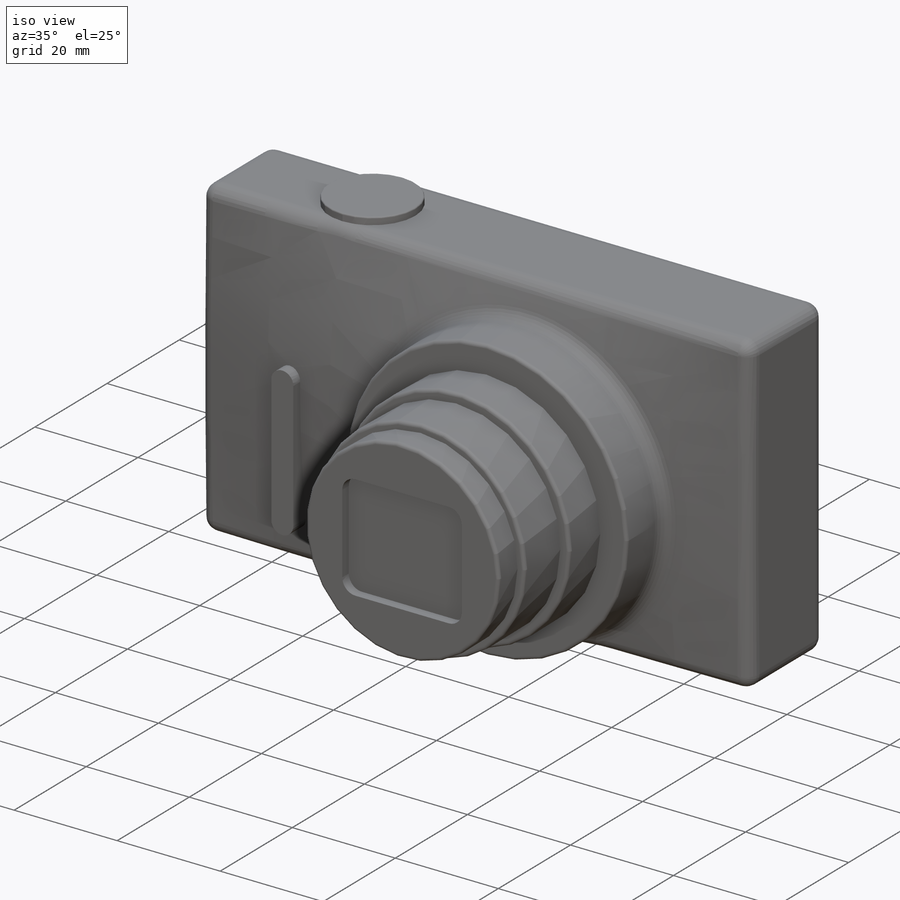
[diagram: iso view]
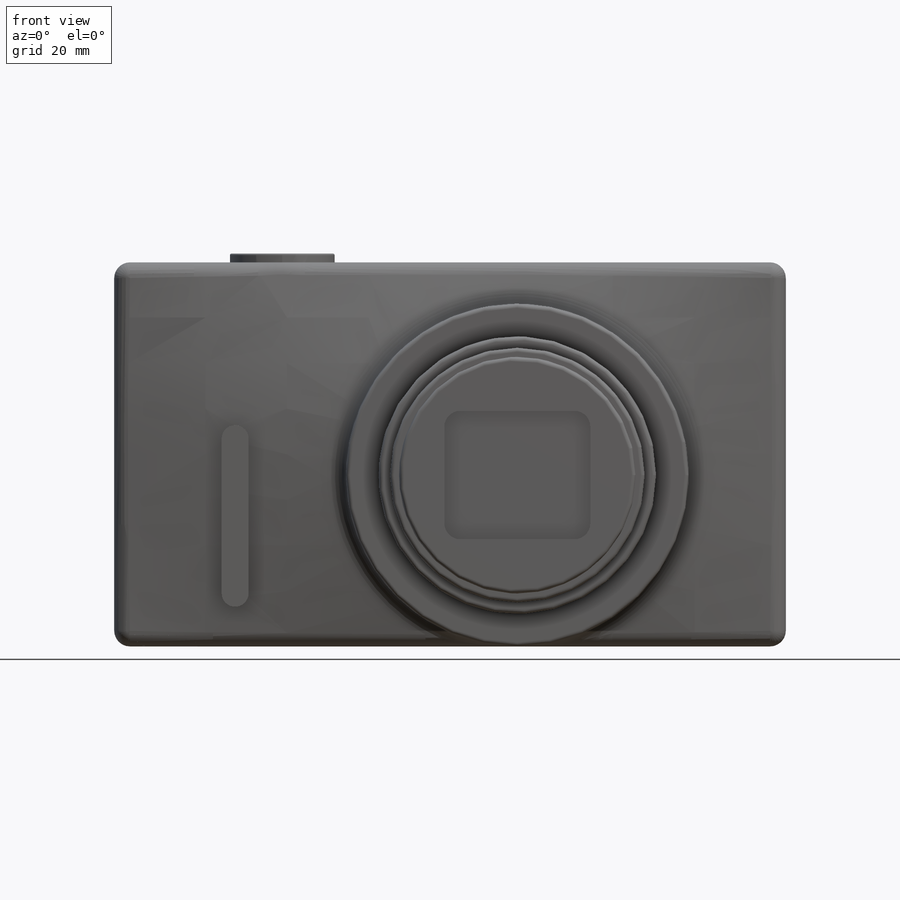
[diagram: front view]
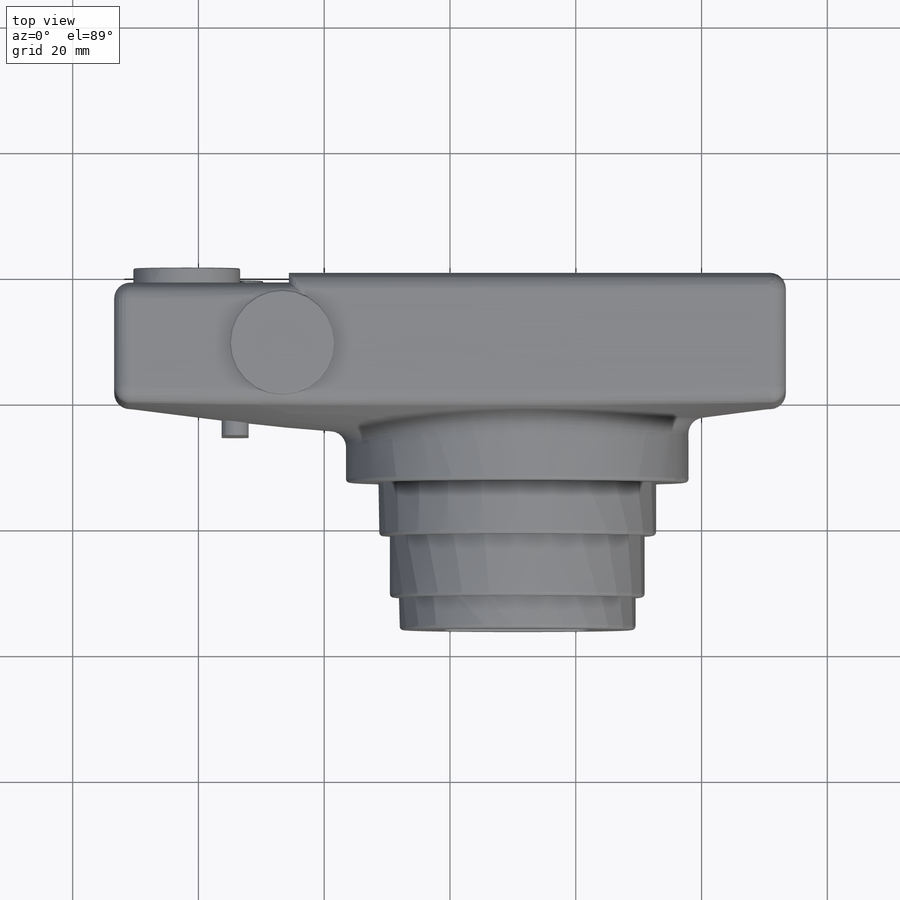
[diagram: top view]
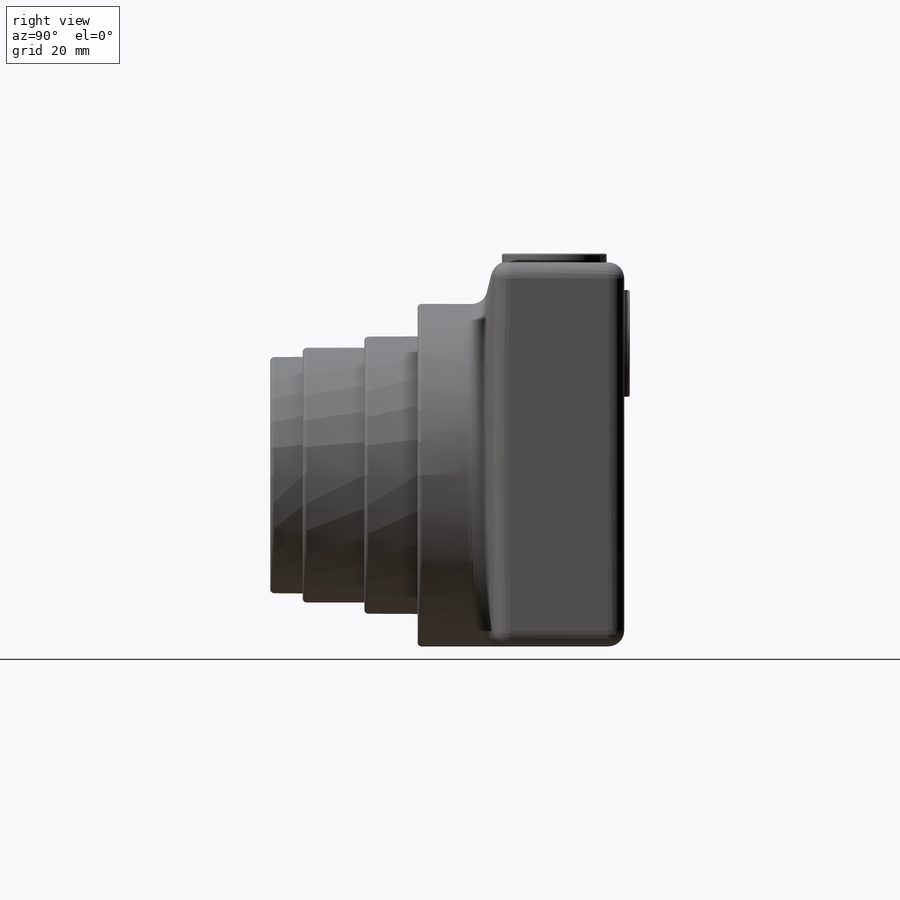
[diagram: right view]
SOLIDWORKS PART (.sldprt)
format: sldprt  version: not decoded by parser v0  size: 767,488 bytes
history: native  units: mm
features: sketch x17, extrude x11, fillet x7, cut_extrude x3, boolean_combine x2, material x1, plane x1, dome x1, hole x1, thread x1 (+13 scaffold rows collapsed)
feature tree (58):
  scaffold x13  (default folders/planes/origin — collapsed)
  material  "Material <not specified>"
  sketch  "Sketch1"  dims[D1=106.8197mm D2=~61.09208mm]
  extrude  "Boss-Extrude1"  Depth=20.6756mm
  plane  "Plane1"  Offset=25.4mm
  sketch  "Sketch2"  dims[D1=54.483mm D2=15.4686mm]
  extrude  "Boss-Extrude2"  Depth=7.4549mm
  sketch  "Sketch3"  dims[D1=44.1452mm D2=~40.51046mm D3=37.6301mm]
  extrude  "Boss-Extrude3"  Depth=8.4709mm
  extrude  "Boss-Extrude4"  [1 undecoded]
  sketch  "Sketch3<3>"  dims[D1=9.8044mm]
  extrude  "Boss-Extrude5"  [1 undecoded]
  sketch  "Sketch3<4>"  dims[D1=5.1562mm]
  sketch  "Sketch5"  dims[D3=2.54mm D1=23.2156mm D2=20.4216mm]
  cut_extrude  "Cut-Extrude1"  Depth=1.8161mm
  sketch  "Sketch6"
  dome  "Dome2"
  sketch  "Sketch7"
  extrude  "Boss-Extrude6"  [1 undecoded]
  sketch  "Sketch10"  dims[D1=1.5494mm D2=27.7876mm]
  cut_extrude  "Cut-Extrude2"  [1 undecoded]
  sketch  "Sketch11"  dims[c1.D1=7.3787mm c1.D3=7.3787mm c1.D5=17.0815mm c1.D2=~7.15645mm c2.D3=25.6159mm c2.D4=~7.37235mm c2.D6=10.8966mm c2.D7=~14.938108mm]
  extrude  "Boss-Extrude7"  Depth=0.127mm
  extrude  "Boss-Extrude8"  [1 undecoded]
  sketch  "Sketch11<3>"  dims[D1=0.9017mm]
  sketch  "Sketch13"  dims[D1=16.9672mm D2=11.5443mm D3=12.8905mm]
  extrude  "Boss-Extrude9"  Depth=2.4257mm
  sketch  "Sketch14"  dims[D1=16.637mm D2=26.7335mm]
  extrude  "Boss-Extrude10"  Depth=1.397mm
  sketch  "Sketch15"  dims[D1=2.1463mm D2=17.0815mm D3=~8.43915mm D4=24.5872mm]
  extrude  "Boss-Extrude11"  [1 undecoded]
  hole  "1/4-20 Tapped Hole1"  [1 undecoded]
  sketch  "Sketch17"  dims[D1=44.7675mm D2=12.7508mm]
  thread  "Hole Thread1"  Diameter=6.35mm  [1 undecoded]
  sketch  "Sketch16"  dims[hole-wizard template sketch: 47 standard entries collapsed; hole parameters kept: c15.Tap Drill Depth=12.7mm c15.D3=~14.816244mm c15.Drill Angle=160.0deg]
  boolean_combine  "Combine1"
  boolean_combine  "Combine2"
  fillet  "Fillet1"  Radius=0.635mm
  fillet  "Fillet2"  Radius=2.54mm
  fillet  "Fillet3"  Radius=2.54mm
  fillet  "Fillet4"  Radius=2.54mm
  fillet  "Fillet5"  Radius=2.54mm
  fillet  "Fillet6"  Radius=0.254mm
  fillet  "Fillet7"  Radius=0.254mm
  sketch  "Sketch18"  dims[D1=3.0099mm]
  cut_extrude  "Cut-Extrude3"  Depth=0.0635mm
decode coverage: 31 of 43 modeling features carry decoded parameters
note: ~ marks probable driven/reference dimensions
note: 8 parameter values undecoded
summary: no parameter record found for 7 features
note: suppression state not decoded; provenance and decode notes live in map.json
